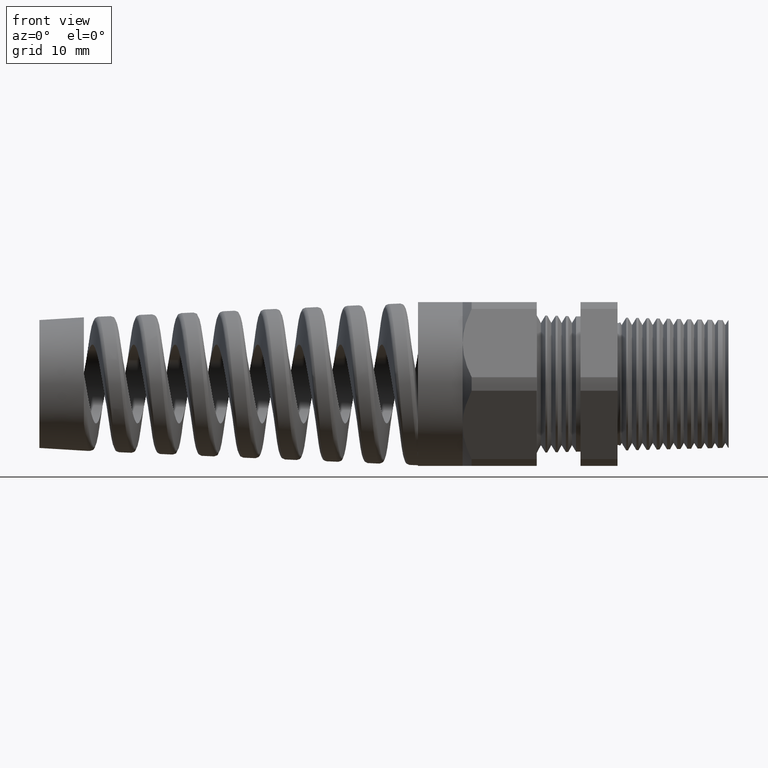
[diagram: clean part render]
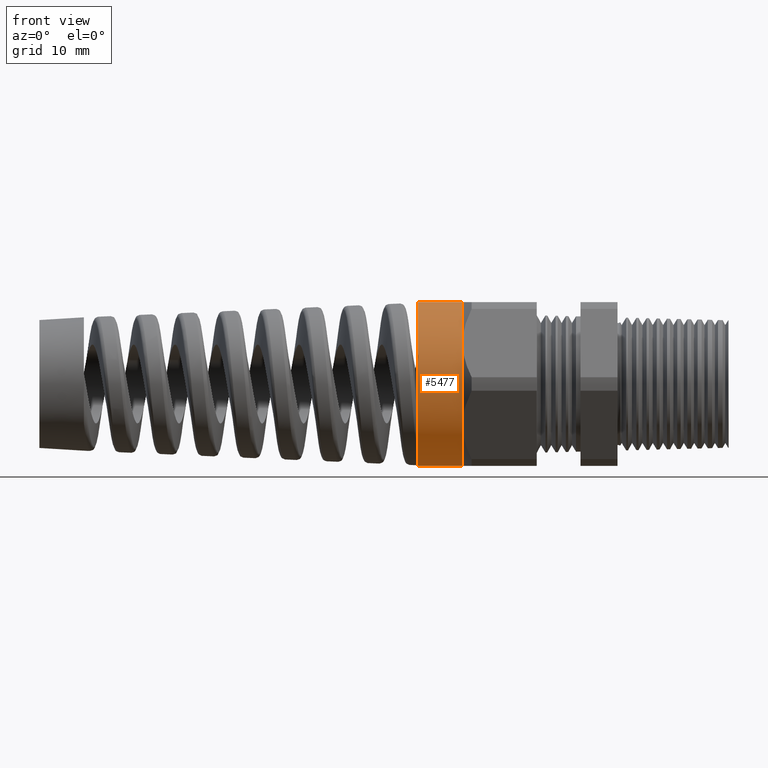
[diagram: same view with one face highlighted and labeled with its STEP entity id]
A machine part, front view. The second image highlights one B-rep face of the part: STEP entity #5477.
In plain terms, the highlighted cylindrical surface (partial cylindrical patch) has radius 11.049 mm, axis along (1, 0, 0).
Its self-contained STEP definition (entity closure, byte-faithful):
#5207 = VERTEX_POINT ( 'NONE', #14221 ) ;
#5208 = VERTEX_POINT ( 'NONE', #14220 ) ;
#5210 = EDGE_CURVE ( 'NONE', #5207, #5211, #14219, .T. ) ;
#5211 = VERTEX_POINT ( 'NONE', #14215 ) ;
#5276 = VERTEX_POINT ( 'NONE', #14348 ) ;
#5278 = EDGE_CURVE ( 'NONE', #5208, #5276, #14347, .T. ) ;
#5337 = VERTEX_POINT ( 'NONE', #14473 ) ;
#5387 = VERTEX_POINT ( 'NONE', #14604 ) ;
#5418 = EDGE_LOOP ( 'NONE', ( #5478, #5479, #5481, #5482, #5484, #5461 ) ) ;
#5461 = ORIENTED_EDGE ( 'NONE', *, *, #5462, .F. ) ;
#5462 = EDGE_CURVE ( 'NONE', #5211, #5387, #14743, .T. ) ;
#5477 = ADVANCED_FACE ( 'NONE', ( #14775 ), #14774, .T. ) ;
#5478 = ORIENTED_EDGE ( 'NONE', *, *, #5210, .F. ) ;
#5479 = ORIENTED_EDGE ( 'NONE', *, *, #5480, .F. ) ;
#5480 = EDGE_CURVE ( 'NONE', #5208, #5207, #14773, .T. ) ;
#5481 = ORIENTED_EDGE ( 'NONE', *, *, #5278, .T. ) ;
#5482 = ORIENTED_EDGE ( 'NONE', *, *, #5483, .F. ) ;
#5483 = EDGE_CURVE ( 'NONE', #5337, #5276, #14819, .T. ) ;
#5484 = ORIENTED_EDGE ( 'NONE', *, *, #5485, .F. ) ;
#5485 = EDGE_CURVE ( 'NONE', #5387, #5337, #14815, .T. ) ;
#14215 = CARTESIAN_POINT ( 'NONE',  ( -1.132519685039370200, 0.0000000000000000000, 0.4350000000000000000 ) ) ;
#14216 = DIRECTION ( 'NONE',  ( 1.000000000000000000, 0.0000000000000000000, 0.0000000000000000000 ) ) ;
#14217 = VECTOR ( 'NONE', #14216, 39.37007874015748100 ) ;
#14218 = CARTESIAN_POINT ( 'NONE',  ( 0.0000000000000000000, 5.327213576290986400E-017, 0.4350000000000000000 ) ) ;
#14219 = LINE ( 'NONE', #14218, #14217 ) ;
#14220 = CARTESIAN_POINT ( 'NONE',  ( -1.369721211586352600, 0.0000000000000000000, -0.4350000000000000000 ) ) ;
#14221 = CARTESIAN_POINT ( 'NONE',  ( -1.369721211586352600, 5.327213576290986400E-017, 0.4350000000000000000 ) ) ;
#14344 = DIRECTION ( 'NONE',  ( 1.000000000000000000, 0.0000000000000000000, 0.0000000000000000000 ) ) ;
#14345 = VECTOR ( 'NONE', #14344, 39.37007874015748100 ) ;
#14346 = CARTESIAN_POINT ( 'NONE',  ( 0.0000000000000000000, 0.0000000000000000000, -0.4350000000000000000 ) ) ;
#14347 = LINE ( 'NONE', #14346, #14345 ) ;
#14348 = CARTESIAN_POINT ( 'NONE',  ( -1.132519685039370200, 0.0000000000000000000, -0.4350000000000000500 ) ) ;
#14473 = CARTESIAN_POINT ( 'NONE',  ( -1.132519685039370200, -0.3767210506462308500, -0.2175000000000000000 ) ) ;
#14604 = CARTESIAN_POINT ( 'NONE',  ( -1.132519685039370200, -0.3767210506462309000, 0.2174999999999999400 ) ) ;
#14739 = DIRECTION ( 'NONE',  ( 0.0000000000000000000, 0.0000000000000000000, -1.000000000000000000 ) ) ;
#14740 = DIRECTION ( 'NONE',  ( 1.000000000000000000, 0.0000000000000000000, 0.0000000000000000000 ) ) ;
#14741 = CARTESIAN_POINT ( 'NONE',  ( -1.132519685039369900, 0.0000000000000000000, 0.0000000000000000000 ) ) ;
#14742 = AXIS2_PLACEMENT_3D ( 'NONE', #14741, #14740, #14739 ) ;
#14743 = CIRCLE ( 'NONE', #14742, 0.4350000000000000000 ) ;
#14764 = DIRECTION ( 'NONE',  ( 0.0000000000000000000, 0.0000000000000000000, 1.000000000000000000 ) ) ;
#14765 = DIRECTION ( 'NONE',  ( -1.000000000000000000, 0.0000000000000000000, 0.0000000000000000000 ) ) ;
#14766 = CARTESIAN_POINT ( 'NONE',  ( -1.369721211586352600, 0.0000000000000000000, 0.0000000000000000000 ) ) ;
#14767 = AXIS2_PLACEMENT_3D ( 'NONE', #14766, #14765, #14764 ) ;
#14768 = CARTESIAN_POINT ( 'NONE',  ( -1.132519685039369900, 0.0000000000000000000, 0.0000000000000000000 ) ) ;
#14769 = DIRECTION ( 'NONE',  ( 0.0000000000000000000, 0.0000000000000000000, -1.000000000000000000 ) ) ;
#14770 = DIRECTION ( 'NONE',  ( 1.000000000000000000, 0.0000000000000000000, 0.0000000000000000000 ) ) ;
#14771 = CARTESIAN_POINT ( 'NONE',  ( 0.0000000000000000000, 0.0000000000000000000, 0.0000000000000000000 ) ) ;
#14772 = AXIS2_PLACEMENT_3D ( 'NONE', #14771, #14770, #14769 ) ;
#14773 = CIRCLE ( 'NONE', #14767, 0.4350000000000000000 ) ;
#14774 = CYLINDRICAL_SURFACE ( 'NONE', #14772, 0.4350000000000000000 ) ;
#14775 = FACE_OUTER_BOUND ( 'NONE', #5418, .T. ) ;
#14812 = DIRECTION ( 'NONE',  ( 0.0000000000000000000, 0.0000000000000000000, -1.000000000000000000 ) ) ;
#14813 = DIRECTION ( 'NONE',  ( 1.000000000000000000, 0.0000000000000000000, 0.0000000000000000000 ) ) ;
#14814 = AXIS2_PLACEMENT_3D ( 'NONE', #14820, #14813, #14812 ) ;
#14815 = CIRCLE ( 'NONE', #14814, 0.4350000000000000000 ) ;
#14816 = DIRECTION ( 'NONE',  ( 0.0000000000000000000, 0.0000000000000000000, -1.000000000000000000 ) ) ;
#14817 = DIRECTION ( 'NONE',  ( 1.000000000000000000, 0.0000000000000000000, 0.0000000000000000000 ) ) ;
#14818 = AXIS2_PLACEMENT_3D ( 'NONE', #14768, #14817, #14816 ) ;
#14819 = CIRCLE ( 'NONE', #14818, 0.4350000000000000000 ) ;
#14820 = CARTESIAN_POINT ( 'NONE',  ( -1.132519685039369900, 0.0000000000000000000, 0.0000000000000000000 ) ) ;